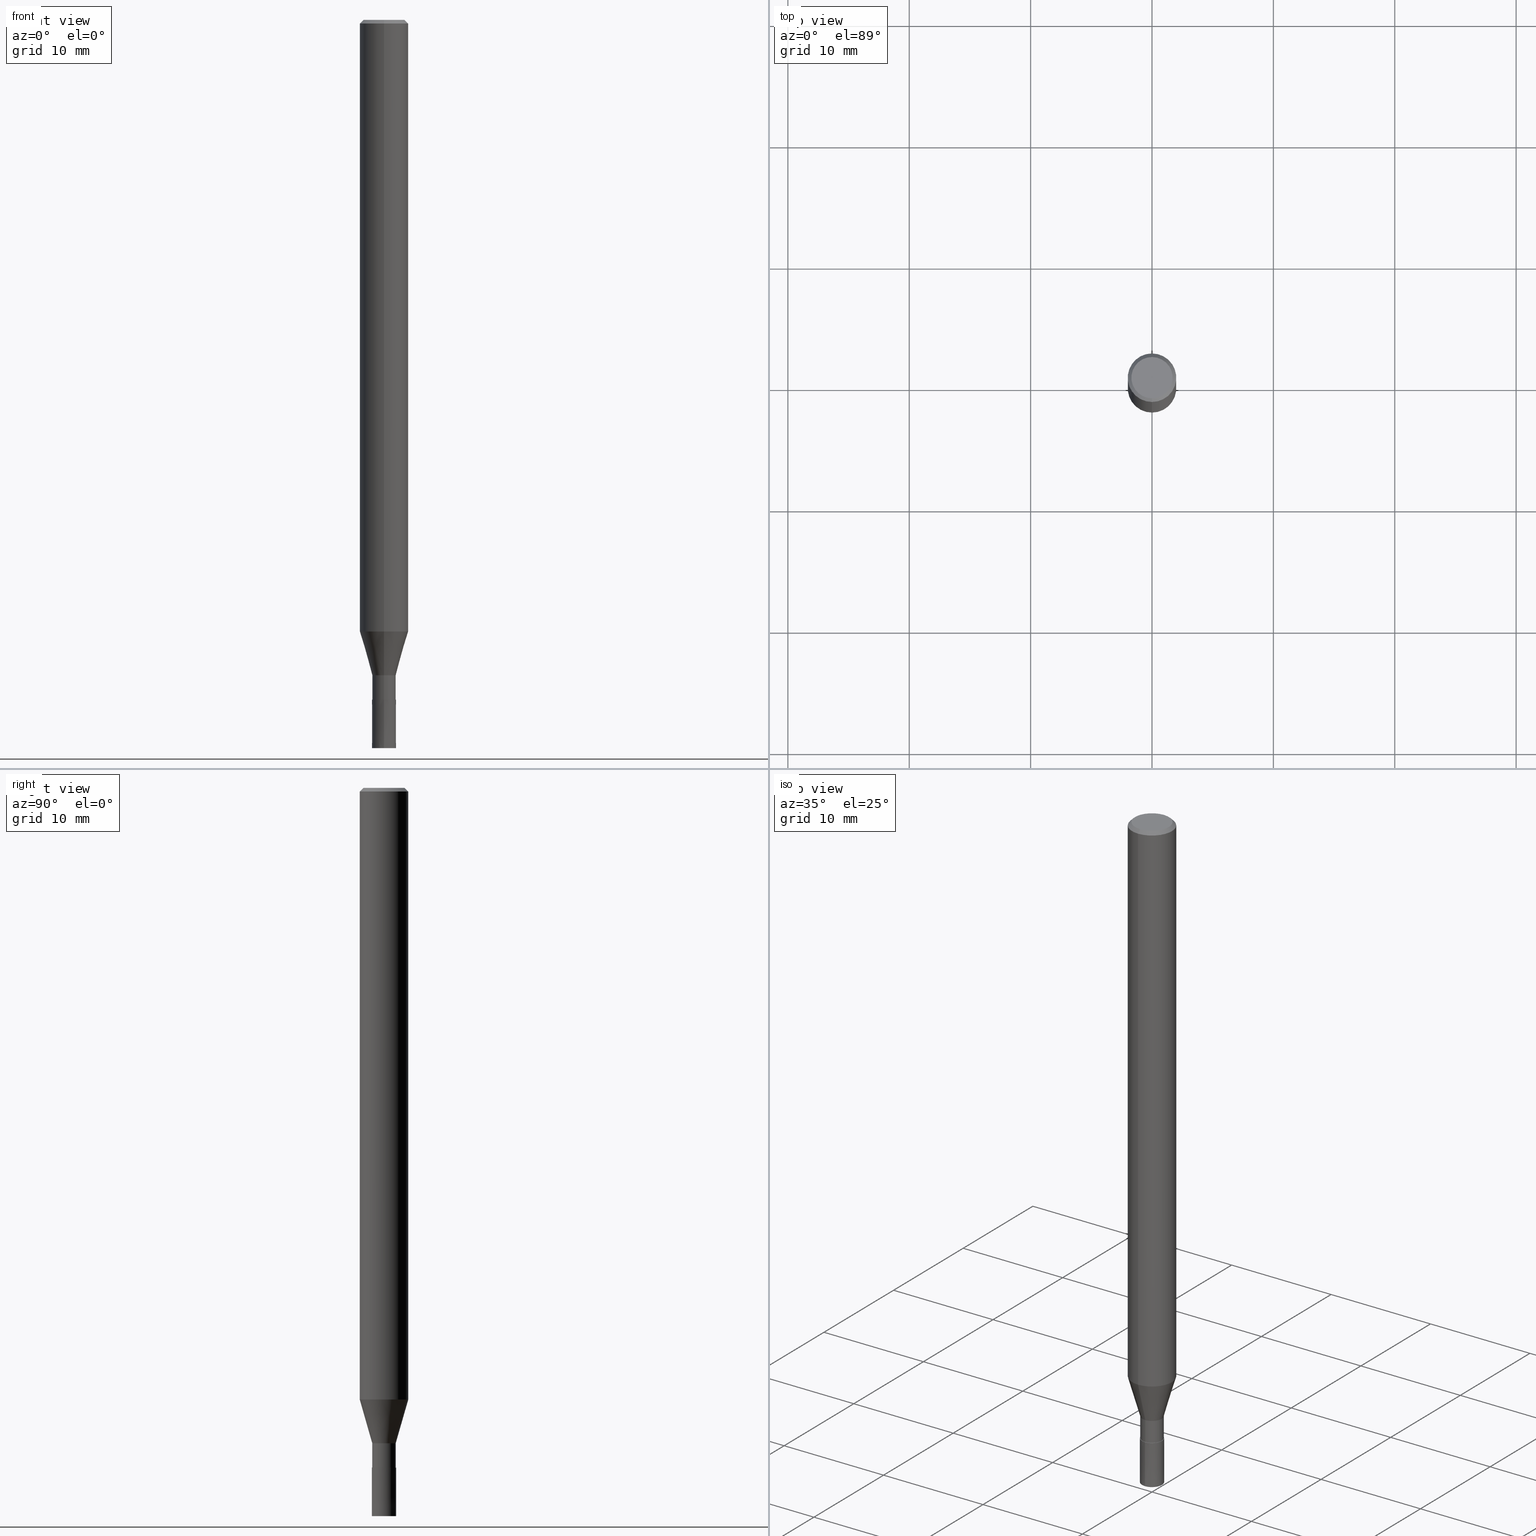
[diagram: canonical four-view strip — front | top / right | iso, engineering-drawing reading convention]
A machine part, canonical four-view strip (front | top / right | iso — engineering-drawing reading convention). The complete STEP part file that produces these views, byte-faithful:
ISO-10303-21;
HEADER;
FILE_DESCRIPTION(('no description'),'unknown implementation level');
FILE_NAME('DLC-AZS3020-060-Huellk.stp','  ',('CIMSOURCE GmbH'),('CADClick - KiM GmbH - www.kimweb.de'),'unknown preprocess','ACIS','unknown authorization');
FILE_SCHEMA(('automotive_design'));
ENDSEC;
DATA;
#1=MECHANICAL_DESIGN_GEOMETRIC_PRESENTATION_REPRESENTATION(' ',(#14,#15,#16,#17,#18,#19,#20,#21,#22,#23,#24,#25,#26,#27,#28,#29,#30,#31,#32,#33,#34,#35,#36,#37,#38,#39,#40,#41,#42,#43,#44,#45,#46,#47,#48,#49,#50,#51,#52,#53,#54,#55,#56,#57,#58,#59,#60,#61,#62,#63,#64,#65,#66,#67,#68,#69,#70,#71,#72),#10);
#2=PRODUCT_DEFINITION_CONTEXT('',#73,'design');
#3=APPLICATION_PROTOCOL_DEFINITION('INTERNATIONAL STANDARD','automotive_design',1994,#73);
#4=PRODUCT_CATEGORY_RELATIONSHIP('NONE','NONE',#74,#75);
#5=SHAPE_DEFINITION_REPRESENTATION(#76,#77);
#6=PRODUCT_DEFINITION_CONTEXT('',#78,'design');
#7=APPLICATION_PROTOCOL_DEFINITION('INTERNATIONAL STANDARD','automotive_design',1994,#78);
#8=PRODUCT_CATEGORY_RELATIONSHIP('NONE','NONE',#79,#80);
#9=SHAPE_DEFINITION_REPRESENTATION(#81,#82);
#10= (GEOMETRIC_REPRESENTATION_CONTEXT(3)GLOBAL_UNCERTAINTY_ASSIGNED_CONTEXT((#85))GLOBAL_UNIT_ASSIGNED_CONTEXT((#87,#88,#89))REPRESENTATION_CONTEXT('NONE','WORKSPACE'));
#14=STYLED_ITEM('',(#91),#92);
#15=STYLED_ITEM('',(#93),#94);
#16=STYLED_ITEM('',(#95),#96);
#17=STYLED_ITEM('',(#97),#98);
#18=STYLED_ITEM('',(#99),#100);
#19=STYLED_ITEM('',(#101),#102);
#20=STYLED_ITEM('',(#103),#104);
#21=STYLED_ITEM('',(#105),#106);
#22=STYLED_ITEM('',(#107),#108);
#23=STYLED_ITEM('',(#109),#110);
#24=STYLED_ITEM('',(#111),#112);
#25=STYLED_ITEM('',(#113),#114);
#26=STYLED_ITEM('',(#115),#116);
#27=STYLED_ITEM('',(#117),#118);
#28=STYLED_ITEM('',(#119),#120);
#29=STYLED_ITEM('',(#121),#122);
#30=STYLED_ITEM('',(#123),#124);
#31=STYLED_ITEM('',(#125),#126);
#32=STYLED_ITEM('',(#127),#128);
#33=STYLED_ITEM('',(#129),#130);
#34=STYLED_ITEM('',(#131),#132);
#35=STYLED_ITEM('',(#133),#134);
#36=STYLED_ITEM('',(#135),#136);
#37=STYLED_ITEM('',(#137),#138);
#38=STYLED_ITEM('',(#139),#140);
#39=STYLED_ITEM('',(#141),#142);
#40=STYLED_ITEM('',(#143),#144);
#41=STYLED_ITEM('',(#145),#146);
#42=STYLED_ITEM('',(#147),#148);
#43=STYLED_ITEM('',(#149),#150);
#44=STYLED_ITEM('',(#151),#152);
#45=STYLED_ITEM('',(#153),#154);
#46=STYLED_ITEM('',(#155),#156);
#47=STYLED_ITEM('',(#157),#158);
#48=STYLED_ITEM('',(#159),#160);
#49=STYLED_ITEM('',(#161),#162);
#50=STYLED_ITEM('',(#163),#164);
#51=STYLED_ITEM('',(#165),#166);
#52=STYLED_ITEM('',(#167),#168);
#53=STYLED_ITEM('',(#169),#170);
#54=STYLED_ITEM('',(#171),#172);
#55=STYLED_ITEM('',(#173),#174);
#56=STYLED_ITEM('',(#175),#176);
#57=STYLED_ITEM('',(#177),#178);
#58=STYLED_ITEM('',(#179),#180);
#59=STYLED_ITEM('',(#181),#182);
#60=STYLED_ITEM('',(#183),#184);
#61=STYLED_ITEM('',(#185),#186);
#62=STYLED_ITEM('',(#187),#188);
#63=STYLED_ITEM('',(#189),#190);
#64=STYLED_ITEM('',(#191),#192);
#65=STYLED_ITEM('',(#193),#194);
#66=STYLED_ITEM('',(#195),#196);
#67=STYLED_ITEM('',(#197),#198);
#68=STYLED_ITEM('',(#199),#200);
#69=STYLED_ITEM('',(#201),#202);
#70=STYLED_ITEM('',(#203),#204);
#71=STYLED_ITEM('',(#205),#206);
#72=STYLED_ITEM('',(#207),#208);
#73=APPLICATION_CONTEXT(' ');
#74=PRODUCT_CATEGORY('part','NONE');
#75=PRODUCT_RELATED_PRODUCT_CATEGORY('detail',' ',(#209));
#76=PRODUCT_DEFINITION_SHAPE('NONE','NONE',#210);
#77=ADVANCED_BREP_SHAPE_REPRESENTATION('1',(#178,#211),#10);
#78=APPLICATION_CONTEXT(' ');
#79=PRODUCT_CATEGORY('part','NONE');
#80=PRODUCT_RELATED_PRODUCT_CATEGORY('detail',' ',(#212));
#81=PRODUCT_DEFINITION_SHAPE('NONE','NONE',#213);
#82=ADVANCED_BREP_SHAPE_REPRESENTATION('2',(#156,#214),#10);
#85=UNCERTAINTY_MEASURE_WITH_UNIT(LENGTH_MEASURE(1.0E-006),#87,'','');
#87= (CONVERSION_BASED_UNIT('MILLIMETRE',#217)LENGTH_UNIT()NAMED_UNIT(#220));
#88= (NAMED_UNIT(#222)PLANE_ANGLE_UNIT()SI_UNIT($,.RADIAN.));
#89= (NAMED_UNIT(#222)SOLID_ANGLE_UNIT()SI_UNIT($,.STERADIAN.));
#91=PRESENTATION_STYLE_ASSIGNMENT((#228));
#92=EDGE_CURVE('',#190,#100,#229,.T.);
#93=PRESENTATION_STYLE_ASSIGNMENT((#230));
#94=VERTEX_POINT('',#231);
#95=PRESENTATION_STYLE_ASSIGNMENT((#232));
#96=ADVANCED_FACE('',(#233),#234,.T.);
#97=PRESENTATION_STYLE_ASSIGNMENT((#235));
#98=VERTEX_POINT('',#236);
#99=PRESENTATION_STYLE_ASSIGNMENT((#237));
#100=VERTEX_POINT('',#238);
#101=PRESENTATION_STYLE_ASSIGNMENT((#239));
#102=VERTEX_POINT('',#240);
#103=PRESENTATION_STYLE_ASSIGNMENT((#241));
#104=EDGE_CURVE('',#190,#98,#242,.T.);
#105=PRESENTATION_STYLE_ASSIGNMENT((#243));
#106=ADVANCED_FACE('',(#244),#245,.T.);
#107=PRESENTATION_STYLE_ASSIGNMENT((#246));
#108=EDGE_CURVE('',#146,#94,#247,.T.);
#109=PRESENTATION_STYLE_ASSIGNMENT((#248));
#110=ADVANCED_FACE('',(#249,#250),#251,.T.);
#111=PRESENTATION_STYLE_ASSIGNMENT((#252));
#112=ADVANCED_FACE('',(#253),#254,.T.);
#113=PRESENTATION_STYLE_ASSIGNMENT((#255));
#114=EDGE_CURVE('',#100,#190,#256,.T.);
#115=PRESENTATION_STYLE_ASSIGNMENT((#257));
#116=EDGE_CURVE('',#168,#102,#258,.T.);
#117=PRESENTATION_STYLE_ASSIGNMENT((#259));
#118=VERTEX_POINT('',#260);
#119=PRESENTATION_STYLE_ASSIGNMENT((#261));
#120=EDGE_CURVE('',#170,#182,#262,.T.);
#121=PRESENTATION_STYLE_ASSIGNMENT((#263));
#122=EDGE_CURVE('',#118,#140,#264,.T.);
#123=PRESENTATION_STYLE_ASSIGNMENT((#265));
#124=ADVANCED_FACE('',(#266),#267,.T.);
#125=PRESENTATION_STYLE_ASSIGNMENT((#268));
#126=EDGE_CURVE('',#140,#118,#269,.T.);
#127=PRESENTATION_STYLE_ASSIGNMENT((#270));
#128=VERTEX_POINT('',#271);
#129=PRESENTATION_STYLE_ASSIGNMENT((#272));
#130=EDGE_CURVE('',#146,#144,#273,.T.);
#131=PRESENTATION_STYLE_ASSIGNMENT((#274));
#132=ADVANCED_FACE('',(#275),#276,.T.);
#133=PRESENTATION_STYLE_ASSIGNMENT((#277));
#134=EDGE_CURVE('',#188,#144,#278,.T.);
#135=PRESENTATION_STYLE_ASSIGNMENT((#279));
#136=VERTEX_POINT('',#280);
#137=PRESENTATION_STYLE_ASSIGNMENT((#281));
#138=ADVANCED_FACE('',(#282),#283,.T.);
#139=PRESENTATION_STYLE_ASSIGNMENT((#284));
#140=VERTEX_POINT('',#285);
#141=PRESENTATION_STYLE_ASSIGNMENT((#286));
#142=EDGE_CURVE('',#188,#94,#287,.T.);
#143=PRESENTATION_STYLE_ASSIGNMENT((#288));
#144=VERTEX_POINT('',#289);
#145=PRESENTATION_STYLE_ASSIGNMENT((#290));
#146=VERTEX_POINT('',#291);
#147=PRESENTATION_STYLE_ASSIGNMENT((#292));
#148=EDGE_CURVE('',#128,#100,#293,.T.);
#149=PRESENTATION_STYLE_ASSIGNMENT((#294));
#150=EDGE_CURVE('',#102,#168,#295,.T.);
#151=PRESENTATION_STYLE_ASSIGNMENT((#296));
#152=ADVANCED_FACE('',(#297),#298,.T.);
#153=PRESENTATION_STYLE_ASSIGNMENT((#299));
#154=EDGE_CURVE('',#102,#190,#300,.T.);
#155=PRESENTATION_STYLE_ASSIGNMENT((#301));
#156=MANIFOLD_SOLID_BREP('2',#302);
#157=PRESENTATION_STYLE_ASSIGNMENT((#303));
#158=EDGE_CURVE('',#198,#136,#304,.T.);
#159=PRESENTATION_STYLE_ASSIGNMENT((#305));
#160=EDGE_CURVE('',#182,#136,#306,.T.);
#161=PRESENTATION_STYLE_ASSIGNMENT((#307));
#162=EDGE_CURVE('',#136,#118,#308,.T.);
#163=PRESENTATION_STYLE_ASSIGNMENT((#309));
#164=ADVANCED_FACE('',(#310),#311,.T.);
#165=PRESENTATION_STYLE_ASSIGNMENT((#312));
#166=EDGE_CURVE('',#100,#168,#313,.T.);
#167=PRESENTATION_STYLE_ASSIGNMENT((#314));
#168=VERTEX_POINT('',#315);
#169=PRESENTATION_STYLE_ASSIGNMENT((#316));
#170=VERTEX_POINT('',#317);
#171=PRESENTATION_STYLE_ASSIGNMENT((#318));
#172=EDGE_CURVE('',#144,#146,#319,.T.);
#173=PRESENTATION_STYLE_ASSIGNMENT((#320));
#174=EDGE_CURVE('',#94,#188,#321,.T.);
#175=PRESENTATION_STYLE_ASSIGNMENT((#322));
#176=EDGE_CURVE('',#136,#198,#323,.T.);
#177=PRESENTATION_STYLE_ASSIGNMENT((#324));
#178=MANIFOLD_SOLID_BREP('1',#325);
#179=PRESENTATION_STYLE_ASSIGNMENT((#326));
#180=EDGE_CURVE('',#198,#170,#327,.T.);
#181=PRESENTATION_STYLE_ASSIGNMENT((#328));
#182=VERTEX_POINT('',#329);
#183=PRESENTATION_STYLE_ASSIGNMENT((#330));
#184=ADVANCED_FACE('',(#331),#332,.T.);
#185=PRESENTATION_STYLE_ASSIGNMENT((#333));
#186=EDGE_CURVE('',#140,#198,#334,.T.);
#187=PRESENTATION_STYLE_ASSIGNMENT((#335));
#188=VERTEX_POINT('',#336);
#189=PRESENTATION_STYLE_ASSIGNMENT((#337));
#190=VERTEX_POINT('',#338);
#191=PRESENTATION_STYLE_ASSIGNMENT((#339));
#192=EDGE_CURVE('',#182,#170,#340,.T.);
#193=PRESENTATION_STYLE_ASSIGNMENT((#341));
#194=ADVANCED_FACE('',(#342),#343,.T.);
#195=PRESENTATION_STYLE_ASSIGNMENT((#344));
#196=ADVANCED_FACE('',(#345),#346,.T.);
#197=PRESENTATION_STYLE_ASSIGNMENT((#347));
#198=VERTEX_POINT('',#348);
#199=PRESENTATION_STYLE_ASSIGNMENT((#349));
#200=EDGE_CURVE('',#128,#98,#350,.T.);
#201=PRESENTATION_STYLE_ASSIGNMENT((#351));
#202=EDGE_CURVE('',#98,#128,#352,.T.);
#203=PRESENTATION_STYLE_ASSIGNMENT((#353));
#204=ADVANCED_FACE('',(#354),#355,.T.);
#205=PRESENTATION_STYLE_ASSIGNMENT((#356));
#206=ADVANCED_FACE('',(#357),#358,.T.);
#207=PRESENTATION_STYLE_ASSIGNMENT((#359));
#208=ADVANCED_FACE('',(#360),#361,.T.);
#209=PRODUCT('1','1','PART-1-DESC',(#362));
#210=PRODUCT_DEFINITION('NONE','NONE',#363,#2);
#211=AXIS2_PLACEMENT_3D('',#364,#365,#366);
#212=PRODUCT('2','2','PART-2-DESC',(#367));
#213=PRODUCT_DEFINITION('NONE','NONE',#368,#6);
#214=AXIS2_PLACEMENT_3D('',#369,#370,#371);
#217=LENGTH_MEASURE_WITH_UNIT(LENGTH_MEASURE(1.0),#372);
#220=DIMENSIONAL_EXPONENTS(1.0,0.0,0.0,0.0,0.0,0.0,0.0);
#222=DIMENSIONAL_EXPONENTS(0.0,0.0,0.0,0.0,0.0,0.0,0.0);
#228=CURVE_STYLE('',#373,POSITIVE_LENGTH_MEASURE(1.0E-006),#374);
#229=CIRCLE('',#375,2.0);
#230=POINT_STYLE(' ',#376,POSITIVE_LENGTH_MEASURE(1.0E-006),#377);
#231=CARTESIAN_POINT('',(1.224483893187E-016,-0.9999,-56.0));
#232=SURFACE_STYLE_USAGE(.BOTH.,#378);
#233=FACE_OUTER_BOUND('',#379,.T.);
#234=CYLINDRICAL_SURFACE('',#380,2.0);
#235=POINT_STYLE(' ',#381,POSITIVE_LENGTH_MEASURE(1.0E-006),#382);
#236=CARTESIAN_POINT('',(0.0,2.0,-50.391));
#237=POINT_STYLE(' ',#383,POSITIVE_LENGTH_MEASURE(1.0E-006),#384);
#238=CARTESIAN_POINT('',(2.44921270764475E-016,-2.0,-0.299999999999997));
#239=POINT_STYLE(' ',#385,POSITIVE_LENGTH_MEASURE(1.0E-006),#386);
#240=CARTESIAN_POINT('',(0.0,1.7,0.0));
#241=CURVE_STYLE('',#387,POSITIVE_LENGTH_MEASURE(1.0E-006),#388);
#242=LINE('',#389,#390);
#243=SURFACE_STYLE_USAGE(.BOTH.,#391);
#244=FACE_OUTER_BOUND('',#392,.T.);
#245=PLANE('',#393);
#246=CURVE_STYLE('',#394,POSITIVE_LENGTH_MEASURE(1.0E-006),#395);
#247=LINE('',#396,#397);
#248=SURFACE_STYLE_USAGE(.BOTH.,#398);
#249=FACE_OUTER_BOUND('',#399,.T.);
#250=FACE_BOUND('',#400,.T.);
#251=PLANE('',#401);
#252=SURFACE_STYLE_USAGE(.BOTH.,#402);
#253=FACE_OUTER_BOUND('',#403,.T.);
#254=PLANE('',#404);
#255=CURVE_STYLE('',#405,POSITIVE_LENGTH_MEASURE(1.0E-006),#406);
#256=CIRCLE('',#407,2.0);
#257=CURVE_STYLE('',#408,POSITIVE_LENGTH_MEASURE(1.0E-006),#409);
#258=CIRCLE('',#410,1.7);
#259=POINT_STYLE(' ',#411,POSITIVE_LENGTH_MEASURE(1.0E-006),#412);
#260=CARTESIAN_POINT('',(0.0,0.96495,-56.0));
#261=CURVE_STYLE('',#413,POSITIVE_LENGTH_MEASURE(1.0E-006),#414);
#262=CIRCLE('',#415,1.99995);
#263=CURVE_STYLE('',#416,POSITIVE_LENGTH_MEASURE(1.0E-006),#417);
#264=CIRCLE('',#418,0.96495);
#265=SURFACE_STYLE_USAGE(.BOTH.,#419);
#266=FACE_OUTER_BOUND('',#420,.T.);
#267=CYLINDRICAL_SURFACE('',#421,0.96495);
#268=CURVE_STYLE('',#422,POSITIVE_LENGTH_MEASURE(1.0E-006),#423);
#269=CIRCLE('',#424,0.96495);
#270=POINT_STYLE(' ',#425,POSITIVE_LENGTH_MEASURE(1.0E-006),#426);
#271=CARTESIAN_POINT('',(2.44921270764475E-016,-2.0,-50.391));
#272=CURVE_STYLE('',#427,POSITIVE_LENGTH_MEASURE(1.0E-006),#428);
#273=CIRCLE('',#429,1.0);
#274=SURFACE_STYLE_USAGE(.BOTH.,#430);
#275=FACE_OUTER_BOUND('',#431,.T.);
#276=CYLINDRICAL_SURFACE('',#432,0.96495);
#277=CURVE_STYLE('',#433,POSITIVE_LENGTH_MEASURE(1.0E-006),#434);
#278=LINE('',#435,#436);
#279=POINT_STYLE(' ',#437,POSITIVE_LENGTH_MEASURE(1.0E-006),#438);
#280=CARTESIAN_POINT('',(0.0,0.96495,-54.0));
#281=SURFACE_STYLE_USAGE(.BOTH.,#439);
#282=FACE_OUTER_BOUND('',#440,.T.);
#283=PLANE('',#441);
#284=POINT_STYLE(' ',#442,POSITIVE_LENGTH_MEASURE(1.0E-006),#443);
#285=CARTESIAN_POINT('',(1.1816839011209E-016,-0.96495,-56.0));
#286=CURVE_STYLE('',#444,POSITIVE_LENGTH_MEASURE(1.0E-006),#445);
#287=CIRCLE('',#446,0.9999);
#288=POINT_STYLE(' ',#447,POSITIVE_LENGTH_MEASURE(1.0E-006),#448);
#289=CARTESIAN_POINT('',(0.0,1.0,-60.0));
#290=POINT_STYLE(' ',#449,POSITIVE_LENGTH_MEASURE(1.0E-006),#450);
#291=CARTESIAN_POINT('',(1.22460635382238E-016,-1.0,-60.0));
#292=CURVE_STYLE('',#451,POSITIVE_LENGTH_MEASURE(1.0E-006),#452);
#293=LINE('',#453,#454);
#294=CURVE_STYLE('',#455,POSITIVE_LENGTH_MEASURE(1.0E-006),#456);
#295=CIRCLE('',#457,1.7);
#296=SURFACE_STYLE_USAGE(.BOTH.,#458);
#297=FACE_OUTER_BOUND('',#459,.T.);
#298=CONICAL_SURFACE('',#460,0.99995,2.49999999947889E-005);
#299=CURVE_STYLE('',#461,POSITIVE_LENGTH_MEASURE(1.0E-006),#462);
#300=LINE('',#463,#464);
#301=SURFACE_STYLE_USAGE(.BOTH.,#465);
#302=CLOSED_SHELL('',(#184,#138,#152,#106));
#303=CURVE_STYLE('',#466,POSITIVE_LENGTH_MEASURE(1.0E-006),#467);
#304=CIRCLE('',#468,0.96495);
#305=CURVE_STYLE('',#469,POSITIVE_LENGTH_MEASURE(1.0E-006),#470);
#306=LINE('',#471,#472);
#307=CURVE_STYLE('',#473,POSITIVE_LENGTH_MEASURE(1.0E-006),#474);
#308=LINE('',#475,#476);
#309=SURFACE_STYLE_USAGE(.BOTH.,#477);
#310=FACE_OUTER_BOUND('',#478,.T.);
#311=PLANE('',#479);
#312=CURVE_STYLE('',#480,POSITIVE_LENGTH_MEASURE(1.0E-006),#481);
#313=LINE('',#482,#483);
#314=POINT_STYLE(' ',#484,POSITIVE_LENGTH_MEASURE(1.0E-006),#485);
#315=CARTESIAN_POINT('',(2.08183080149804E-016,-1.7,0.0));
#316=POINT_STYLE(' ',#486,POSITIVE_LENGTH_MEASURE(1.0E-006),#487);
#317=CARTESIAN_POINT('',(2.44915147732706E-016,-1.99995,-50.391));
#318=CURVE_STYLE('',#488,POSITIVE_LENGTH_MEASURE(1.0E-006),#489);
#319=CIRCLE('',#490,1.0);
#320=CURVE_STYLE('',#491,POSITIVE_LENGTH_MEASURE(1.0E-006),#492);
#321=CIRCLE('',#493,0.9999);
#322=CURVE_STYLE('',#494,POSITIVE_LENGTH_MEASURE(1.0E-006),#495);
#323=CIRCLE('',#496,0.96495);
#324=SURFACE_STYLE_USAGE(.BOTH.,#497);
#325=CLOSED_SHELL('',(#132,#194,#208,#204,#110,#164,#196,#96,#206,#124,#112));
#326=CURVE_STYLE('',#498,POSITIVE_LENGTH_MEASURE(1.0E-006),#499);
#327=LINE('',#500,#501);
#328=POINT_STYLE(' ',#502,POSITIVE_LENGTH_MEASURE(1.0E-006),#503);
#329=CARTESIAN_POINT('',(0.0,1.99995,-50.391));
#330=SURFACE_STYLE_USAGE(.BOTH.,#504);
#331=FACE_OUTER_BOUND('',#505,.T.);
#332=CONICAL_SURFACE('',#506,0.99995,2.49999999947889E-005);
#333=CURVE_STYLE('',#507,POSITIVE_LENGTH_MEASURE(1.0E-006),#508);
#334=LINE('',#509,#510);
#335=POINT_STYLE(' ',#511,POSITIVE_LENGTH_MEASURE(1.0E-006),#512);
#336=CARTESIAN_POINT('',(0.0,0.9999,-56.0));
#337=POINT_STYLE(' ',#513,POSITIVE_LENGTH_MEASURE(1.0E-006),#514);
#338=CARTESIAN_POINT('',(0.0,2.0,-0.299999999999997));
#339=CURVE_STYLE('',#515,POSITIVE_LENGTH_MEASURE(1.0E-006),#516);
#340=CIRCLE('',#517,1.99995);
#341=SURFACE_STYLE_USAGE(.BOTH.,#518);
#342=FACE_OUTER_BOUND('',#519,.T.);
#343=CONICAL_SURFACE('',#520,1.48245,0.27928747560841);
#344=SURFACE_STYLE_USAGE(.BOTH.,#521);
#345=FACE_OUTER_BOUND('',#522,.T.);
#346=CONICAL_SURFACE('',#523,1.85,0.785398163397453);
#347=POINT_STYLE(' ',#524,POSITIVE_LENGTH_MEASURE(1.0E-006),#525);
#348=CARTESIAN_POINT('',(1.1816839011209E-016,-0.96495,-54.0));
#349=CURVE_STYLE('',#526,POSITIVE_LENGTH_MEASURE(1.0E-006),#527);
#350=CIRCLE('',#528,2.0);
#351=CURVE_STYLE('',#529,POSITIVE_LENGTH_MEASURE(1.0E-006),#530);
#352=CIRCLE('',#531,2.0);
#353=SURFACE_STYLE_USAGE(.BOTH.,#532);
#354=FACE_OUTER_BOUND('',#533,.T.);
#355=CONICAL_SURFACE('',#534,1.85,0.785398163397453);
#356=SURFACE_STYLE_USAGE(.BOTH.,#535);
#357=FACE_OUTER_BOUND('',#536,.T.);
#358=CONICAL_SURFACE('',#537,1.48245,0.27928747560841);
#359=SURFACE_STYLE_USAGE(.BOTH.,#538);
#360=FACE_OUTER_BOUND('',#539,.T.);
#361=CYLINDRICAL_SURFACE('',#540,2.0);
#362=PRODUCT_CONTEXT('',#73,'mechanical');
#363=PRODUCT_DEFINITION_FORMATION_WITH_SPECIFIED_SOURCE(' ','NONE',#209,.NOT_KNOWN.);
#364=CARTESIAN_POINT('',(0.0,0.0,0.0));
#365=DIRECTION('',(0.0,0.0,1.0));
#366=DIRECTION('',(1.0,0.0,0.0));
#367=PRODUCT_CONTEXT('',#78,'mechanical');
#368=PRODUCT_DEFINITION_FORMATION_WITH_SPECIFIED_SOURCE(' ','NONE',#212,.NOT_KNOWN.);
#369=CARTESIAN_POINT('',(0.0,0.0,0.0));
#370=DIRECTION('',(0.0,0.0,1.0));
#371=DIRECTION('',(1.0,0.0,0.0));
#372= (NAMED_UNIT(#220)LENGTH_UNIT()SI_UNIT(.MILLI.,.METRE.));
#373=DRAUGHTING_PRE_DEFINED_CURVE_FONT('continuous');
#374=COLOUR_RGB('',0.498039215803146,0.498039215803146,0.498039215803146);
#375=AXIS2_PLACEMENT_3D('',#542,#543,#544);
#376=PRE_DEFINED_MARKER('');
#377=COLOUR_RGB('',0.800000011920929,0.800000011920929,0.800000011920929);
#378=SURFACE_SIDE_STYLE('',(#545));
#379=EDGE_LOOP('',(#546,#547,#548,#549));
#380=AXIS2_PLACEMENT_3D('',#550,#551,#552);
#381=PRE_DEFINED_MARKER('');
#382=COLOUR_RGB('',0.498039215803146,0.498039215803146,0.498039215803146);
#383=PRE_DEFINED_MARKER('');
#384=COLOUR_RGB('',0.498039215803146,0.498039215803146,0.498039215803146);
#385=PRE_DEFINED_MARKER('');
#386=COLOUR_RGB('',0.498039215803146,0.498039215803146,0.498039215803146);
#387=DRAUGHTING_PRE_DEFINED_CURVE_FONT('continuous');
#388=COLOUR_RGB('',0.498039215803146,0.498039215803146,0.498039215803146);
#389=CARTESIAN_POINT('',(-2.44921270764475E-016,2.0,-25.3455));
#390=VECTOR('',#553,1.0);
#391=SURFACE_SIDE_STYLE('',(#554));
#392=EDGE_LOOP('',(#555,#556));
#393=AXIS2_PLACEMENT_3D('',#557,#558,#559);
#394=DRAUGHTING_PRE_DEFINED_CURVE_FONT('continuous');
#395=COLOUR_RGB('',0.800000011920929,0.800000011920929,0.800000011920929);
#396=CARTESIAN_POINT('',(1.22454512350469E-016,-0.99995,-58.0));
#397=VECTOR('',#560,1.0);
#398=SURFACE_SIDE_STYLE('',(#561));
#399=EDGE_LOOP('',(#562,#563));
#400=EDGE_LOOP('',(#564,#565));
#401=AXIS2_PLACEMENT_3D('',#566,#567,#568);
#402=SURFACE_SIDE_STYLE('',(#569));
#403=EDGE_LOOP('',(#570,#571));
#404=AXIS2_PLACEMENT_3D('',#572,#573,#574);
#405=DRAUGHTING_PRE_DEFINED_CURVE_FONT('continuous');
#406=COLOUR_RGB('',0.498039215803146,0.498039215803146,0.498039215803146);
#407=AXIS2_PLACEMENT_3D('',#575,#576,#577);
#408=DRAUGHTING_PRE_DEFINED_CURVE_FONT('continuous');
#409=COLOUR_RGB('',0.498039215803146,0.498039215803146,0.498039215803146);
#410=AXIS2_PLACEMENT_3D('',#578,#579,#580);
#411=PRE_DEFINED_MARKER('');
#412=COLOUR_RGB('',0.498039215803146,0.498039215803146,0.498039215803146);
#413=DRAUGHTING_PRE_DEFINED_CURVE_FONT('continuous');
#414=COLOUR_RGB('',0.498039215803146,0.498039215803146,0.498039215803146);
#415=AXIS2_PLACEMENT_3D('',#581,#582,#583);
#416=DRAUGHTING_PRE_DEFINED_CURVE_FONT('continuous');
#417=COLOUR_RGB('',0.498039215803146,0.498039215803146,0.498039215803146);
#418=AXIS2_PLACEMENT_3D('',#584,#585,#586);
#419=SURFACE_SIDE_STYLE('',(#587));
#420=EDGE_LOOP('',(#588,#589,#590,#591));
#421=AXIS2_PLACEMENT_3D('',#592,#593,#594);
#422=DRAUGHTING_PRE_DEFINED_CURVE_FONT('continuous');
#423=COLOUR_RGB('',0.498039215803146,0.498039215803146,0.498039215803146);
#424=AXIS2_PLACEMENT_3D('',#595,#596,#597);
#425=PRE_DEFINED_MARKER('');
#426=COLOUR_RGB('',0.498039215803146,0.498039215803146,0.498039215803146);
#427=DRAUGHTING_PRE_DEFINED_CURVE_FONT('continuous');
#428=COLOUR_RGB('',0.800000011920929,0.800000011920929,0.800000011920929);
#429=AXIS2_PLACEMENT_3D('',#598,#599,#600);
#430=SURFACE_SIDE_STYLE('',(#601));
#431=EDGE_LOOP('',(#602,#603,#604,#605));
#432=AXIS2_PLACEMENT_3D('',#606,#607,#608);
#433=DRAUGHTING_PRE_DEFINED_CURVE_FONT('continuous');
#434=COLOUR_RGB('',0.800000011920929,0.800000011920929,0.800000011920929);
#435=CARTESIAN_POINT('',(-1.22454512350469E-016,0.99995,-58.0));
#436=VECTOR('',#609,1.0);
#437=PRE_DEFINED_MARKER('');
#438=COLOUR_RGB('',0.498039215803146,0.498039215803146,0.498039215803146);
#439=SURFACE_SIDE_STYLE('',(#610));
#440=EDGE_LOOP('',(#611,#612));
#441=AXIS2_PLACEMENT_3D('',#613,#614,#615);
#442=PRE_DEFINED_MARKER('');
#443=COLOUR_RGB('',0.498039215803146,0.498039215803146,0.498039215803146);
#444=DRAUGHTING_PRE_DEFINED_CURVE_FONT('continuous');
#445=COLOUR_RGB('',0.800000011920929,0.800000011920929,0.800000011920929);
#446=AXIS2_PLACEMENT_3D('',#616,#617,#618);
#447=PRE_DEFINED_MARKER('');
#448=COLOUR_RGB('',0.800000011920929,0.800000011920929,0.800000011920929);
#449=PRE_DEFINED_MARKER('');
#450=COLOUR_RGB('',0.800000011920929,0.800000011920929,0.800000011920929);
#451=DRAUGHTING_PRE_DEFINED_CURVE_FONT('continuous');
#452=COLOUR_RGB('',0.498039215803146,0.498039215803146,0.498039215803146);
#453=CARTESIAN_POINT('',(2.44921270764475E-016,-2.0,-25.3455));
#454=VECTOR('',#619,1.0);
#455=DRAUGHTING_PRE_DEFINED_CURVE_FONT('continuous');
#456=COLOUR_RGB('',0.498039215803146,0.498039215803146,0.498039215803146);
#457=AXIS2_PLACEMENT_3D('',#620,#621,#622);
#458=SURFACE_SIDE_STYLE('',(#623));
#459=EDGE_LOOP('',(#624,#625,#626,#627));
#460=AXIS2_PLACEMENT_3D('',#628,#629,#630);
#461=DRAUGHTING_PRE_DEFINED_CURVE_FONT('continuous');
#462=COLOUR_RGB('',0.498039215803146,0.498039215803146,0.498039215803146);
#463=CARTESIAN_POINT('',(-2.2655217545714E-016,1.85,-0.149999999999999));
#464=VECTOR('',#631,1.0);
#465=SURFACE_SIDE_STYLE('',(#632));
#466=DRAUGHTING_PRE_DEFINED_CURVE_FONT('continuous');
#467=COLOUR_RGB('',0.498039215803146,0.498039215803146,0.498039215803146);
#468=AXIS2_PLACEMENT_3D('',#633,#634,#635);
#469=DRAUGHTING_PRE_DEFINED_CURVE_FONT('continuous');
#470=COLOUR_RGB('',0.498039215803146,0.498039215803146,0.498039215803146);
#471=CARTESIAN_POINT('',(-1.81541768922398E-016,1.48245,-52.1955));
#472=VECTOR('',#636,1.0);
#473=DRAUGHTING_PRE_DEFINED_CURVE_FONT('continuous');
#474=COLOUR_RGB('',0.498039215803146,0.498039215803146,0.498039215803146);
#475=CARTESIAN_POINT('',(-1.1816839011209E-016,0.96495,-55.0));
#476=VECTOR('',#637,1.0);
#477=SURFACE_SIDE_STYLE('',(#638));
#478=EDGE_LOOP('',(#639,#640));
#479=AXIS2_PLACEMENT_3D('',#641,#642,#643);
#480=DRAUGHTING_PRE_DEFINED_CURVE_FONT('continuous');
#481=COLOUR_RGB('',0.498039215803146,0.498039215803146,0.498039215803146);
#482=CARTESIAN_POINT('',(2.2655217545714E-016,-1.85,-0.149999999999999));
#483=VECTOR('',#644,1.0);
#484=PRE_DEFINED_MARKER('');
#485=COLOUR_RGB('',0.498039215803146,0.498039215803146,0.498039215803146);
#486=PRE_DEFINED_MARKER('');
#487=COLOUR_RGB('',0.498039215803146,0.498039215803146,0.498039215803146);
#488=DRAUGHTING_PRE_DEFINED_CURVE_FONT('continuous');
#489=COLOUR_RGB('',0.800000011920929,0.800000011920929,0.800000011920929);
#490=AXIS2_PLACEMENT_3D('',#645,#646,#647);
#491=DRAUGHTING_PRE_DEFINED_CURVE_FONT('continuous');
#492=COLOUR_RGB('',0.800000011920929,0.800000011920929,0.800000011920929);
#493=AXIS2_PLACEMENT_3D('',#648,#649,#650);
#494=DRAUGHTING_PRE_DEFINED_CURVE_FONT('continuous');
#495=COLOUR_RGB('',0.498039215803146,0.498039215803146,0.498039215803146);
#496=AXIS2_PLACEMENT_3D('',#651,#652,#653);
#497=SURFACE_SIDE_STYLE('',(#654));
#498=DRAUGHTING_PRE_DEFINED_CURVE_FONT('continuous');
#499=COLOUR_RGB('',0.498039215803146,0.498039215803146,0.498039215803146);
#500=CARTESIAN_POINT('',(1.81541768922398E-016,-1.48245,-52.1955));
#501=VECTOR('',#655,1.0);
#502=PRE_DEFINED_MARKER('');
#503=COLOUR_RGB('',0.498039215803146,0.498039215803146,0.498039215803146);
#504=SURFACE_SIDE_STYLE('',(#656));
#505=EDGE_LOOP('',(#657,#658,#659,#660));
#506=AXIS2_PLACEMENT_3D('',#661,#662,#663);
#507=DRAUGHTING_PRE_DEFINED_CURVE_FONT('continuous');
#508=COLOUR_RGB('',0.498039215803146,0.498039215803146,0.498039215803146);
#509=CARTESIAN_POINT('',(1.1816839011209E-016,-0.96495,-55.0));
#510=VECTOR('',#664,1.0);
#511=PRE_DEFINED_MARKER('');
#512=COLOUR_RGB('',0.800000011920929,0.800000011920929,0.800000011920929);
#513=PRE_DEFINED_MARKER('');
#514=COLOUR_RGB('',0.498039215803146,0.498039215803146,0.498039215803146);
#515=DRAUGHTING_PRE_DEFINED_CURVE_FONT('continuous');
#516=COLOUR_RGB('',0.498039215803146,0.498039215803146,0.498039215803146);
#517=AXIS2_PLACEMENT_3D('',#665,#666,#667);
#518=SURFACE_SIDE_STYLE('',(#668));
#519=EDGE_LOOP('',(#669,#670,#671,#672));
#520=AXIS2_PLACEMENT_3D('',#673,#674,#675);
#521=SURFACE_SIDE_STYLE('',(#676));
#522=EDGE_LOOP('',(#677,#678,#679,#680));
#523=AXIS2_PLACEMENT_3D('',#681,#682,#683);
#524=PRE_DEFINED_MARKER('');
#525=COLOUR_RGB('',0.498039215803146,0.498039215803146,0.498039215803146);
#526=DRAUGHTING_PRE_DEFINED_CURVE_FONT('continuous');
#527=COLOUR_RGB('',0.498039215803146,0.498039215803146,0.498039215803146);
#528=AXIS2_PLACEMENT_3D('',#684,#685,#686);
#529=DRAUGHTING_PRE_DEFINED_CURVE_FONT('continuous');
#530=COLOUR_RGB('',0.498039215803146,0.498039215803146,0.498039215803146);
#531=AXIS2_PLACEMENT_3D('',#687,#688,#689);
#532=SURFACE_SIDE_STYLE('',(#690));
#533=EDGE_LOOP('',(#691,#692,#693,#694));
#534=AXIS2_PLACEMENT_3D('',#695,#696,#697);
#535=SURFACE_SIDE_STYLE('',(#698));
#536=EDGE_LOOP('',(#699,#700,#701,#702));
#537=AXIS2_PLACEMENT_3D('',#703,#704,#705);
#538=SURFACE_SIDE_STYLE('',(#706));
#539=EDGE_LOOP('',(#707,#708,#709,#710));
#540=AXIS2_PLACEMENT_3D('',#711,#712,#713);
#542=CARTESIAN_POINT('',(0.0,0.0,-0.299999999999997));
#543=DIRECTION('',(0.0,0.0,-1.0));
#544=DIRECTION('',(0.0,1.0,0.0));
#545=SURFACE_STYLE_FILL_AREA(#714);
#546=ORIENTED_EDGE('',*,*,#104,.T.);
#547=ORIENTED_EDGE('',*,*,#200,.F.);
#548=ORIENTED_EDGE('',*,*,#148,.T.);
#549=ORIENTED_EDGE('',*,*,#114,.T.);
#550=CARTESIAN_POINT('',(0.0,0.0,-25.3455));
#551=DIRECTION('',(-0.0,-0.0,1.0));
#552=DIRECTION('',(0.0,1.0,0.0));
#553=DIRECTION('',(0.0,0.0,-1.0));
#554=SURFACE_STYLE_FILL_AREA(#715);
#555=ORIENTED_EDGE('',*,*,#172,.T.);
#556=ORIENTED_EDGE('',*,*,#130,.T.);
#557=CARTESIAN_POINT('',(0.0,0.4975,-60.0));
#558=DIRECTION('',(0.0,0.0,-1.0));
#559=DIRECTION('',(0.0,1.0,0.0));
#560=DIRECTION('',(-3.06151588359888E-021,2.49999999921847E-005,0.9999999996875));
#561=SURFACE_STYLE_FILL_AREA(#716);
#562=ORIENTED_EDGE('',*,*,#202,.T.);
#563=ORIENTED_EDGE('',*,*,#200,.T.);
#564=ORIENTED_EDGE('',*,*,#192,.F.);
#565=ORIENTED_EDGE('',*,*,#120,.F.);
#566=CARTESIAN_POINT('',(0.0,1.0,-50.391));
#567=DIRECTION('',(0.0,0.0,-1.0));
#568=DIRECTION('',(0.0,1.0,0.0));
#569=SURFACE_STYLE_FILL_AREA(#717);
#570=ORIENTED_EDGE('',*,*,#122,.T.);
#571=ORIENTED_EDGE('',*,*,#126,.T.);
#572=CARTESIAN_POINT('',(0.0,0.482475,-56.0));
#573=DIRECTION('',(0.0,0.0,-1.0));
#574=DIRECTION('',(0.0,1.0,0.0));
#575=CARTESIAN_POINT('',(0.0,0.0,-0.299999999999997));
#576=DIRECTION('',(0.0,0.0,-1.0));
#577=DIRECTION('',(0.0,1.0,0.0));
#578=CARTESIAN_POINT('',(0.0,0.0,0.0));
#579=DIRECTION('',(0.0,0.0,-1.0));
#580=DIRECTION('',(0.0,1.0,0.0));
#581=CARTESIAN_POINT('',(0.0,0.0,-50.391));
#582=DIRECTION('',(0.0,0.0,-1.0));
#583=DIRECTION('',(0.0,1.0,0.0));
#584=CARTESIAN_POINT('',(0.0,0.0,-56.0));
#585=DIRECTION('',(0.0,0.0,-1.0));
#586=DIRECTION('',(0.0,1.0,0.0));
#587=SURFACE_STYLE_FILL_AREA(#718);
#588=ORIENTED_EDGE('',*,*,#162,.T.);
#589=ORIENTED_EDGE('',*,*,#126,.F.);
#590=ORIENTED_EDGE('',*,*,#186,.T.);
#591=ORIENTED_EDGE('',*,*,#158,.T.);
#592=CARTESIAN_POINT('',(0.0,0.0,-55.0));
#593=DIRECTION('',(-0.0,-0.0,1.0));
#594=DIRECTION('',(0.0,1.0,0.0));
#595=CARTESIAN_POINT('',(0.0,0.0,-56.0));
#596=DIRECTION('',(0.0,0.0,-1.0));
#597=DIRECTION('',(0.0,1.0,0.0));
#598=CARTESIAN_POINT('',(0.0,0.0,-60.0));
#599=DIRECTION('',(0.0,0.0,-1.0));
#600=DIRECTION('',(0.0,1.0,0.0));
#601=SURFACE_STYLE_FILL_AREA(#719);
#602=ORIENTED_EDGE('',*,*,#162,.F.);
#603=ORIENTED_EDGE('',*,*,#176,.T.);
#604=ORIENTED_EDGE('',*,*,#186,.F.);
#605=ORIENTED_EDGE('',*,*,#122,.F.);
#606=CARTESIAN_POINT('',(0.0,0.0,-55.0));
#607=DIRECTION('',(-0.0,-0.0,1.0));
#608=DIRECTION('',(0.0,1.0,0.0));
#609=DIRECTION('',(-3.06151588359888E-021,2.49999999921847E-005,-0.9999999996875));
#610=SURFACE_STYLE_FILL_AREA(#720);
#611=ORIENTED_EDGE('',*,*,#142,.F.);
#612=ORIENTED_EDGE('',*,*,#174,.F.);
#613=CARTESIAN_POINT('',(0.0,0.49995,-56.0));
#614=DIRECTION('',(-0.0,0.0,1.0));
#615=DIRECTION('',(0.0,-1.0,0.0));
#616=CARTESIAN_POINT('',(0.0,0.0,-56.0));
#617=DIRECTION('',(0.0,0.0,-1.0));
#618=DIRECTION('',(0.0,1.0,0.0));
#619=DIRECTION('',(-0.0,-0.0,1.0));
#620=CARTESIAN_POINT('',(0.0,0.0,0.0));
#621=DIRECTION('',(0.0,0.0,-1.0));
#622=DIRECTION('',(0.0,1.0,0.0));
#623=SURFACE_STYLE_FILL_AREA(#721);
#624=ORIENTED_EDGE('',*,*,#134,.T.);
#625=ORIENTED_EDGE('',*,*,#130,.F.);
#626=ORIENTED_EDGE('',*,*,#108,.T.);
#627=ORIENTED_EDGE('',*,*,#174,.T.);
#628=CARTESIAN_POINT('',(0.0,0.0,-58.0));
#629=DIRECTION('',(0.0,-0.0,-1.0));
#630=DIRECTION('',(0.0,1.0,0.0));
#631=DIRECTION('',(-8.6592745707194E-017,0.707106781186551,-0.707106781186544));
#632=SURFACE_STYLE_FILL_AREA(#722);
#633=CARTESIAN_POINT('',(0.0,0.0,-54.0));
#634=DIRECTION('',(0.0,0.0,-1.0));
#635=DIRECTION('',(0.0,1.0,0.0));
#636=DIRECTION('',(3.37588216952574E-017,-0.275670803028954,-0.961252104474873));
#637=DIRECTION('',(0.0,0.0,-1.0));
#638=SURFACE_STYLE_FILL_AREA(#723);
#639=ORIENTED_EDGE('',*,*,#150,.F.);
#640=ORIENTED_EDGE('',*,*,#116,.F.);
#641=CARTESIAN_POINT('',(0.0,0.85,0.0));
#642=DIRECTION('',(-0.0,0.0,1.0));
#643=DIRECTION('',(0.0,-1.0,0.0));
#644=DIRECTION('',(-8.6592745707194E-017,0.707106781186551,0.707106781186544));
#645=CARTESIAN_POINT('',(0.0,0.0,-60.0));
#646=DIRECTION('',(0.0,0.0,-1.0));
#647=DIRECTION('',(0.0,1.0,0.0));
#648=CARTESIAN_POINT('',(0.0,0.0,-56.0));
#649=DIRECTION('',(0.0,0.0,-1.0));
#650=DIRECTION('',(0.0,1.0,0.0));
#651=CARTESIAN_POINT('',(0.0,0.0,-54.0));
#652=DIRECTION('',(0.0,0.0,-1.0));
#653=DIRECTION('',(0.0,1.0,0.0));
#654=SURFACE_STYLE_FILL_AREA(#724);
#655=DIRECTION('',(3.37588216952574E-017,-0.275670803028954,0.961252104474873));
#656=SURFACE_STYLE_FILL_AREA(#725);
#657=ORIENTED_EDGE('',*,*,#134,.F.);
#658=ORIENTED_EDGE('',*,*,#142,.T.);
#659=ORIENTED_EDGE('',*,*,#108,.F.);
#660=ORIENTED_EDGE('',*,*,#172,.F.);
#661=CARTESIAN_POINT('',(0.0,0.0,-58.0));
#662=DIRECTION('',(0.0,-0.0,-1.0));
#663=DIRECTION('',(0.0,1.0,0.0));
#664=DIRECTION('',(-0.0,-0.0,1.0));
#665=CARTESIAN_POINT('',(0.0,0.0,-50.391));
#666=DIRECTION('',(0.0,0.0,-1.0));
#667=DIRECTION('',(0.0,1.0,0.0));
#668=SURFACE_STYLE_FILL_AREA(#726);
#669=ORIENTED_EDGE('',*,*,#160,.F.);
#670=ORIENTED_EDGE('',*,*,#192,.T.);
#671=ORIENTED_EDGE('',*,*,#180,.F.);
#672=ORIENTED_EDGE('',*,*,#176,.F.);
#673=CARTESIAN_POINT('',(0.0,0.0,-52.1955));
#674=DIRECTION('',(-0.0,-0.0,1.0));
#675=DIRECTION('',(0.0,1.0,0.0));
#676=SURFACE_STYLE_FILL_AREA(#727);
#677=ORIENTED_EDGE('',*,*,#154,.T.);
#678=ORIENTED_EDGE('',*,*,#114,.F.);
#679=ORIENTED_EDGE('',*,*,#166,.T.);
#680=ORIENTED_EDGE('',*,*,#116,.T.);
#681=CARTESIAN_POINT('',(0.0,0.0,-0.149999999999999));
#682=DIRECTION('',(0.0,-0.0,-1.0));
#683=DIRECTION('',(0.0,1.0,0.0));
#684=CARTESIAN_POINT('',(0.0,0.0,-50.391));
#685=DIRECTION('',(0.0,0.0,-1.0));
#686=DIRECTION('',(0.0,1.0,0.0));
#687=CARTESIAN_POINT('',(0.0,0.0,-50.391));
#688=DIRECTION('',(0.0,0.0,-1.0));
#689=DIRECTION('',(0.0,1.0,0.0));
#690=SURFACE_STYLE_FILL_AREA(#728);
#691=ORIENTED_EDGE('',*,*,#154,.F.);
#692=ORIENTED_EDGE('',*,*,#150,.T.);
#693=ORIENTED_EDGE('',*,*,#166,.F.);
#694=ORIENTED_EDGE('',*,*,#92,.F.);
#695=CARTESIAN_POINT('',(0.0,0.0,-0.149999999999999));
#696=DIRECTION('',(0.0,-0.0,-1.0));
#697=DIRECTION('',(0.0,1.0,0.0));
#698=SURFACE_STYLE_FILL_AREA(#729);
#699=ORIENTED_EDGE('',*,*,#160,.T.);
#700=ORIENTED_EDGE('',*,*,#158,.F.);
#701=ORIENTED_EDGE('',*,*,#180,.T.);
#702=ORIENTED_EDGE('',*,*,#120,.T.);
#703=CARTESIAN_POINT('',(0.0,0.0,-52.1955));
#704=DIRECTION('',(-0.0,-0.0,1.0));
#705=DIRECTION('',(0.0,1.0,0.0));
#706=SURFACE_STYLE_FILL_AREA(#730);
#707=ORIENTED_EDGE('',*,*,#104,.F.);
#708=ORIENTED_EDGE('',*,*,#92,.T.);
#709=ORIENTED_EDGE('',*,*,#148,.F.);
#710=ORIENTED_EDGE('',*,*,#202,.F.);
#711=CARTESIAN_POINT('',(0.0,0.0,-25.3455));
#712=DIRECTION('',(-0.0,-0.0,1.0));
#713=DIRECTION('',(0.0,1.0,0.0));
#714=FILL_AREA_STYLE('',(#731));
#715=FILL_AREA_STYLE('',(#732));
#716=FILL_AREA_STYLE('',(#733));
#717=FILL_AREA_STYLE('',(#734));
#718=FILL_AREA_STYLE('',(#735));
#719=FILL_AREA_STYLE('',(#736));
#720=FILL_AREA_STYLE('',(#737));
#721=FILL_AREA_STYLE('',(#738));
#722=FILL_AREA_STYLE('',(#739));
#723=FILL_AREA_STYLE('',(#740));
#724=FILL_AREA_STYLE('',(#741));
#725=FILL_AREA_STYLE('',(#742));
#726=FILL_AREA_STYLE('',(#743));
#727=FILL_AREA_STYLE('',(#744));
#728=FILL_AREA_STYLE('',(#745));
#729=FILL_AREA_STYLE('',(#746));
#730=FILL_AREA_STYLE('',(#747));
#731=FILL_AREA_STYLE_COLOUR('',#748);
#732=FILL_AREA_STYLE_COLOUR('',#749);
#733=FILL_AREA_STYLE_COLOUR('',#750);
#734=FILL_AREA_STYLE_COLOUR('',#751);
#735=FILL_AREA_STYLE_COLOUR('',#752);
#736=FILL_AREA_STYLE_COLOUR('',#753);
#737=FILL_AREA_STYLE_COLOUR('',#754);
#738=FILL_AREA_STYLE_COLOUR('',#755);
#739=FILL_AREA_STYLE_COLOUR('',#756);
#740=FILL_AREA_STYLE_COLOUR('',#757);
#741=FILL_AREA_STYLE_COLOUR('',#758);
#742=FILL_AREA_STYLE_COLOUR('',#759);
#743=FILL_AREA_STYLE_COLOUR('',#760);
#744=FILL_AREA_STYLE_COLOUR('',#761);
#745=FILL_AREA_STYLE_COLOUR('',#762);
#746=FILL_AREA_STYLE_COLOUR('',#763);
#747=FILL_AREA_STYLE_COLOUR('',#764);
#748=COLOUR_RGB('',0.498039215803146,0.498039215803146,0.498039215803146);
#749=COLOUR_RGB('',0.800000011920929,0.800000011920929,0.800000011920929);
#750=COLOUR_RGB('',0.498039215803146,0.498039215803146,0.498039215803146);
#751=COLOUR_RGB('',0.498039215803146,0.498039215803146,0.498039215803146);
#752=COLOUR_RGB('',0.498039215803146,0.498039215803146,0.498039215803146);
#753=COLOUR_RGB('',0.498039215803146,0.498039215803146,0.498039215803146);
#754=COLOUR_RGB('',0.800000011920929,0.800000011920929,0.800000011920929);
#755=COLOUR_RGB('',0.800000011920929,0.800000011920929,0.800000011920929);
#756=COLOUR_RGB('',0.800000011920929,0.800000011920929,0.800000011920929);
#757=COLOUR_RGB('',0.498039215803146,0.498039215803146,0.498039215803146);
#758=COLOUR_RGB('',0.498039215803146,0.498039215803146,0.498039215803146);
#759=COLOUR_RGB('',0.800000011920929,0.800000011920929,0.800000011920929);
#760=COLOUR_RGB('',0.498039215803146,0.498039215803146,0.498039215803146);
#761=COLOUR_RGB('',0.498039215803146,0.498039215803146,0.498039215803146);
#762=COLOUR_RGB('',0.498039215803146,0.498039215803146,0.498039215803146);
#763=COLOUR_RGB('',0.498039215803146,0.498039215803146,0.498039215803146);
#764=COLOUR_RGB('',0.498039215803146,0.498039215803146,0.498039215803146);
#765=AXIS2_PLACEMENT_3D('PCS',#766,#767,#768);
#766=CARTESIAN_POINT('',(0.0,0.0,0.0));
#767=DIRECTION('',(0.0,0.0,1.0));
#768=DIRECTION('',(1.0,0.0,0.0));
#769=AXIS2_PLACEMENT_3D('CIP',#770,#771,#772);
#770=CARTESIAN_POINT('',(0.0,0.0,-60.0));
#771=DIRECTION('',(0.0,0.0,1.0));
#772=DIRECTION('',(1.0,0.0,0.0));
#773=AXIS2_PLACEMENT_3D('CRP',#774,#775,#776);
#774=CARTESIAN_POINT('',(-1.0,0.0,-60.0));
#775=DIRECTION('',(0.0,0.0,1.0));
#776=DIRECTION('',(1.0,0.0,0.0));
#777=AXIS2_PLACEMENT_3D('MCS',#778,#779,#780);
#778=CARTESIAN_POINT('',(0.0,0.0,-50.391));
#779=DIRECTION('',(0.0,0.0,1.0));
#780=DIRECTION('',(1.0,0.0,0.0));
#781=CONSTRUCTIVE_GEOMETRY_REPRESENTATION_RELATIONSHIP('coordinate systems',$,#77,#782);
#782=CONSTRUCTIVE_GEOMETRY_REPRESENTATION('coordinate systems',(#765,#769,#773,#777),#10);
ENDSEC;
END-ISO-10303-21;
